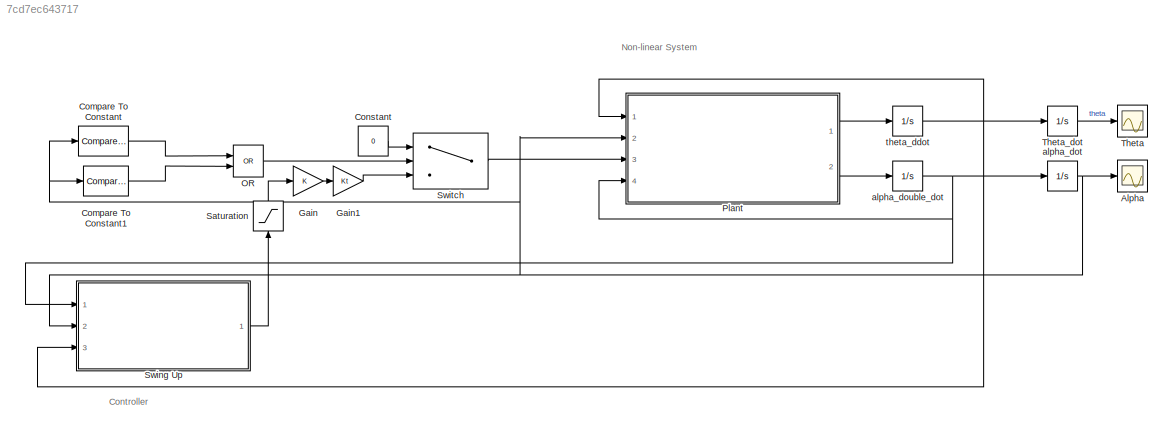
MODEL slx_7cd7ec643717
KIND model
CONFIG AbsTol = auto
CONFIG EnableMultiTasking = off
CONFIG FixedStep = .0001
CONFIG MaxStep = auto
CONFIG MinStep = auto
CONFIG RelTol = 1e-3
CONFIG SampleTimeConstraint = Unconstrained
CONFIG Solver = ode4
CONFIG SolverName = ode4
CONFIG StartTime = 0.0
CONFIG StopTime = 10
BLOCK [Scope] Alpha
  Floating = off
  NumInputPorts = 1
  Ports = [1]
  ScopeSpecificationString = Simulink.scopes.TimeScopeBlockCfg('CurrentConfiguration', extmgr.ConfigurationSet(extmgr.Configuration('Core','General UI',true),extmgr.Configuration('Core','Source UI',true),extmgr.Configuration('Sources','WiredSimulink',true,'DataLoggingVariableName','ScopeData1'),extmgr.Configuration('Visuals','Time Domain',true,'SerializedDisplays',{struct('MinYLimReal','-1.11438','MaxYLimReal','13.46075','YLa...<+1470ch>
BLOCK [Reference] Compare To Constant  REF=simulink/Logic and Bit
Operations/Compare
To Constant
  Ports = [1, 1]
  SourceBlock = simulink/Logic and Bit\nOperations/Compare\nTo Constant
  SourceProductBaseCode = SL
  SourceType = Compare To Constant
BLOCK [Reference] Compare To Constant1  REF=simulink/Logic and Bit
Operations/Compare
To Constant
  Ports = [1, 1]
  SourceBlock = simulink/Logic and Bit\nOperations/Compare\nTo Constant
  SourceProductBaseCode = SL
  SourceType = Compare To Constant
BLOCK [Constant] Constant
  Value = 0
BLOCK [Gain] Gain
BLOCK [Gain] Gain1
  Gain = Kt
BLOCK [Logic] OR
  AllPortsSameDT = off
  IconShape = distinctive
  Operator = OR
  OutDataTypeStr = boolean
  Ports = [2, 1]
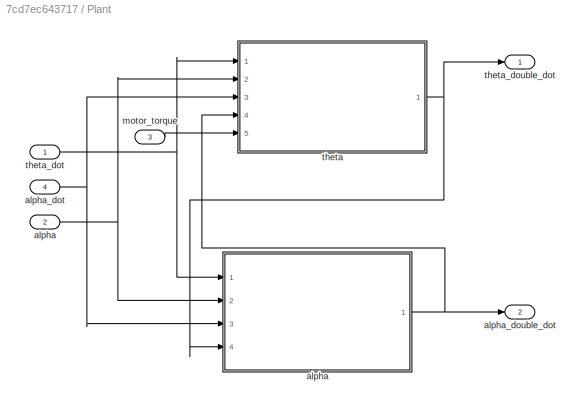
BLOCK [SubSystem] Plant
  Ports = [4, 2]
  RequestExecContextInheritance = off
BLOCK [Inport] Plant/alpha
  Port = 2
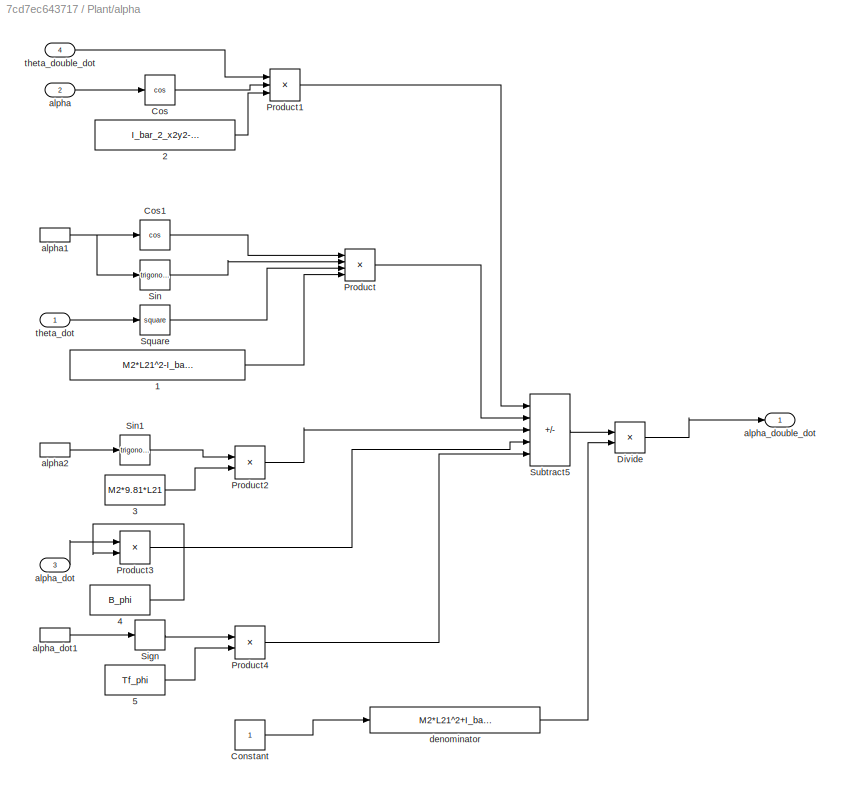
BLOCK [SubSystem] Plant/alpha 
  Ports = [4, 1]
  RequestExecContextInheritance = off
BLOCK [Fcn] Plant/alpha /1
  Expr = M2*L21^2-I_bar_2_y2+I_bar_2_z2
BLOCK [Fcn] Plant/alpha /2
  Expr = I_bar_2_x2y2-M2*L1*L21
BLOCK [Fcn] Plant/alpha /3
  Expr = M2*9.81*L21
BLOCK [Fcn] Plant/alpha /4
  Expr = B_phi
BLOCK [Fcn] Plant/alpha /5
  Expr = Tf_phi
BLOCK [Constant] Plant/alpha /Constant
BLOCK [Trigonometry] Plant/alpha /Cos
  Operator = cos
  Ports = [1, 1]
BLOCK [Trigonometry] Plant/alpha /Cos1
  Operator = cos
  Ports = [1, 1]
BLOCK [Product] Plant/alpha /Divide
  Inputs = */
  Ports = [2, 1]
BLOCK [Product] Plant/alpha /Product
  Inputs = 4
  Ports = [4, 1]
BLOCK [Product] Plant/alpha /Product1
  Inputs = 3
  Ports = [3, 1]
BLOCK [Product] Plant/alpha /Product2
  Ports = [2, 1]
BLOCK [Product] Plant/alpha /Product3
  Ports = [2, 1]
BLOCK [Product] Plant/alpha /Product4
  Ports = [2, 1]
BLOCK [Signum] Plant/alpha /Sign
BLOCK [Trigonometry] Plant/alpha /Sin
  Ports = [1, 1]
BLOCK [Trigonometry] Plant/alpha /Sin1
  Ports = [1, 1]
BLOCK [Math] Plant/alpha /Square
  Operator = square
  Ports = [1, 1]
  SignedPower = on
BLOCK [Sum] Plant/alpha /Subtract5
  IconShape = rectangular
  Inputs = +++--
  Ports = [5, 1]
BLOCK [Inport] Plant/alpha /alpha
  Port = 2
BLOCK [InportShadow] Plant/alpha /alpha1
  Port = 2
BLOCK [InportShadow] Plant/alpha /alpha2
  Port = 2
BLOCK [Inport] Plant/alpha /alpha_dot
  Port = 3
BLOCK [InportShadow] Plant/alpha /alpha_dot1
  Port = 3
BLOCK [Outport] Plant/alpha /alpha_double_dot
BLOCK [Fcn] Plant/alpha /denominator 
  Expr = M2*L21^2+I_bar_2_x2
BLOCK [Inport] Plant/alpha /theta_dot
BLOCK [Inport] Plant/alpha /theta_double_dot
  Port = 4
BLOCK [Inport] Plant/alpha_dot
  Port = 4
BLOCK [Outport] Plant/alpha_double_dot
  Port = 2
BLOCK [Inport] Plant/motor_torque 
  Port = 3
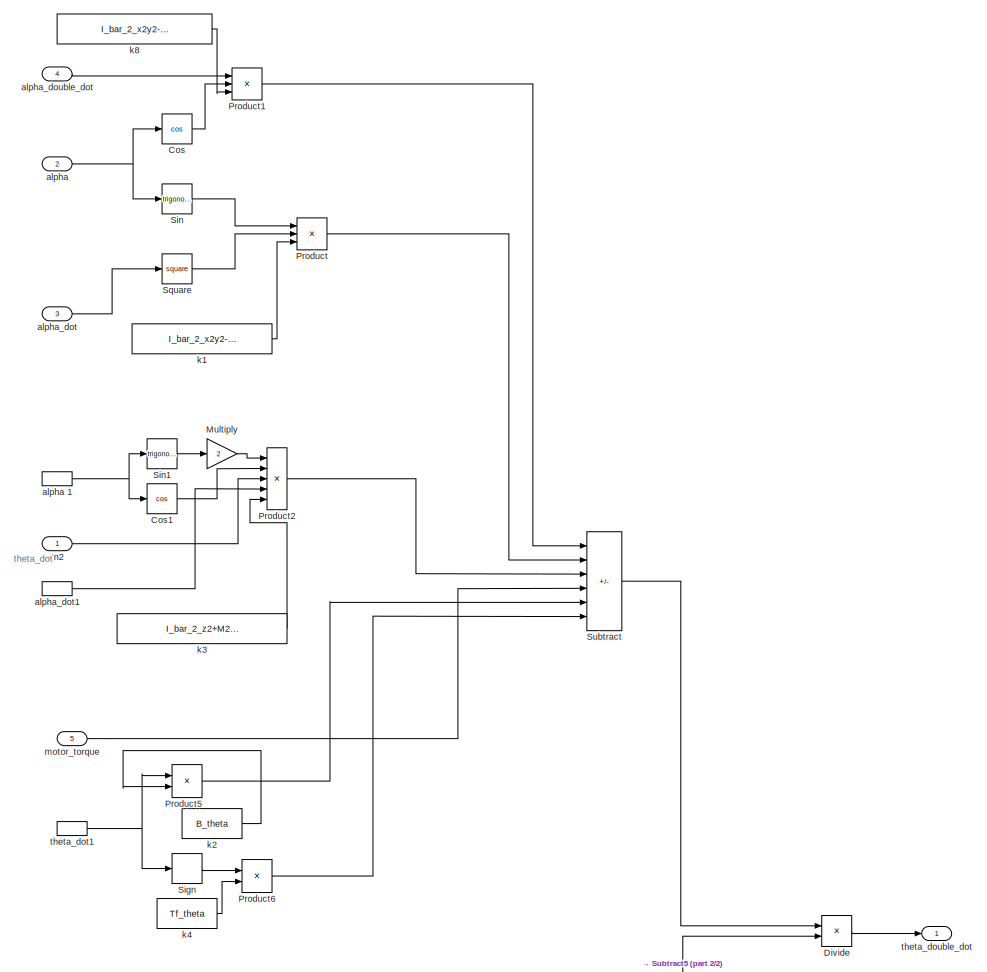
[diagram: Plant/theta  - part 1/2, full width, middle band]
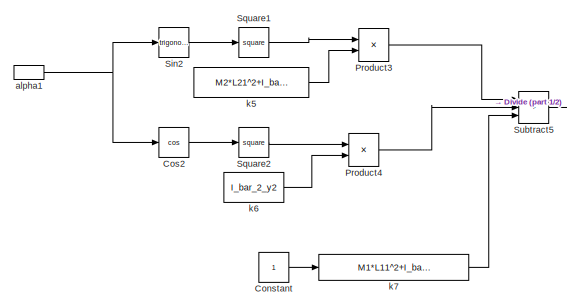
[diagram: Plant/theta  - part 2/2, bottom center region]
BLOCK [SubSystem] Plant/theta 
  Ports = [5, 1]
  RequestExecContextInheritance = off
BLOCK [Constant] Plant/theta /Constant
BLOCK [Trigonometry] Plant/theta /Cos
  Operator = cos
  Ports = [1, 1]
BLOCK [Trigonometry] Plant/theta /Cos1
  Operator = cos
  Ports = [1, 1]
BLOCK [Trigonometry] Plant/theta /Cos2
  Operator = cos
  Ports = [1, 1]
BLOCK [Product] Plant/theta /Divide
  Inputs = */
  Ports = [2, 1]
BLOCK [Inport] Plant/theta /In2
BLOCK [Gain] Plant/theta /Multiply
  Gain = 2
BLOCK [Product] Plant/theta /Product
  Inputs = 3
  Ports = [3, 1]
BLOCK [Product] Plant/theta /Product1
  Inputs = 3
  Ports = [3, 1]
BLOCK [Product] Plant/theta /Product2
  Inputs = 5
  Ports = [5, 1]
BLOCK [Product] Plant/theta /Product3
  Ports = [2, 1]
BLOCK [Product] Plant/theta /Product4
  Ports = [2, 1]
BLOCK [Product] Plant/theta /Product5
  Ports = [2, 1]
BLOCK [Product] Plant/theta /Product6
  Ports = [2, 1]
BLOCK [Signum] Plant/theta /Sign
BLOCK [Trigonometry] Plant/theta /Sin
  Ports = [1, 1]
BLOCK [Trigonometry] Plant/theta /Sin1
  Ports = [1, 1]
BLOCK [Trigonometry] Plant/theta /Sin2
  Ports = [1, 1]
BLOCK [Math] Plant/theta /Square
  Operator = square
  Ports = [1, 1]
  SignedPower = on
BLOCK [Math] Plant/theta /Square1
  Operator = square
  Ports = [1, 1]
  SignedPower = on
BLOCK [Math] Plant/theta /Square2
  Operator = square
  Ports = [1, 1]
  SignedPower = on
BLOCK [Sum] Plant/theta /Subtract
  IconShape = rectangular
  Inputs = +--+--
  Ports = [6, 1]
BLOCK [Sum] Plant/theta /Subtract5
  IconShape = rectangular
  Inputs = +++
  Ports = [3, 1]
BLOCK [Inport] Plant/theta /alpha
  Port = 2
BLOCK [InportShadow] Plant/theta /alpha 1
  Port = 2
BLOCK [InportShadow] Plant/theta /alpha1
  Port = 2
BLOCK [Inport] Plant/theta /alpha_dot
  Port = 3
BLOCK [InportShadow] Plant/theta /alpha_dot1
  Port = 3
BLOCK [Inport] Plant/theta /alpha_double_dot
  Port = 4
BLOCK [Fcn] Plant/theta /k1
  Expr = I_bar_2_x2y2-M2*L1*L21
BLOCK [Fcn] Plant/theta /k2
  Expr = B_theta
BLOCK [Fcn] Plant/theta /k3
  Expr = I_bar_2_z2+M2*L21^2-I_bar_2_y2
BLOCK [Fcn] Plant/theta /k4
  Expr = Tf_theta
BLOCK [Fcn] Plant/theta /k5
  Expr = M2*L21^2+I_bar_2_z2
BLOCK [Fcn] Plant/theta /k6
  Expr = I_bar_2_y2
BLOCK [Fcn] Plant/theta /k7
  Expr = M1*L11^2+I_bar_1_z1+M2*L1^2
BLOCK [Fcn] Plant/theta /k8
  Expr = I_bar_2_x2y2-M2*L1*L21
BLOCK [Inport] Plant/theta /motor_torque 
  Port = 5
BLOCK [InportShadow] Plant/theta /theta_dot1
BLOCK [Outport] Plant/theta /theta_double_dot 
BLOCK [Inport] Plant/theta_dot
BLOCK [Outport] Plant/theta_double_dot 
BLOCK [Saturate] Saturation
  LowerLimit = -3
  NameLocation = right
  UpperLimit = 3
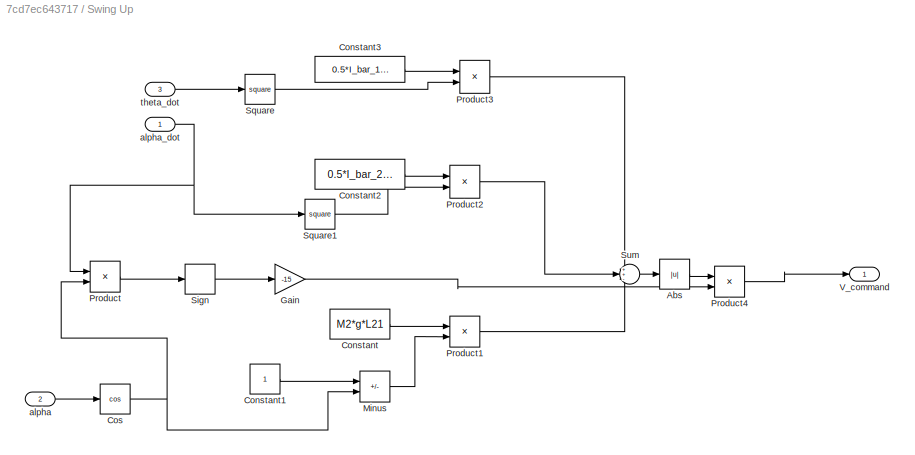
BLOCK [SubSystem] Swing Up 
  Ports = [3, 1]
  RequestExecContextInheritance = off
BLOCK [Abs] Swing Up /Abs
  SaturateOnIntegerOverflow = off
BLOCK [Constant] Swing Up /Constant
  Value = M2*g*L21
BLOCK [Constant] Swing Up /Constant1
BLOCK [Constant] Swing Up /Constant2
  Value = 0.5*I_bar_2_x2
BLOCK [Constant] Swing Up /Constant3
  Value = 0.5*I_bar_1_z1
BLOCK [Trigonometry] Swing Up /Cos
  Operator = cos
  Ports = [1, 1]
BLOCK [Gain] Swing Up /Gain
  Gain = -15
BLOCK [Sum] Swing Up /Minus
  IconShape = rectangular
  Inputs = +-
  Ports = [2, 1]
BLOCK [Product] Swing Up /Product
  Ports = [2, 1]
BLOCK [Product] Swing Up /Product1
  Ports = [2, 1]
BLOCK [Product] Swing Up /Product2
  Ports = [2, 1]
BLOCK [Product] Swing Up /Product3
  Ports = [2, 1]
BLOCK [Product] Swing Up /Product4
  Ports = [2, 1]
BLOCK [Signum] Swing Up /Sign
BLOCK [Math] Swing Up /Square
  Operator = square
  Ports = [1, 1]
  SignedPower = on
BLOCK [Math] Swing Up /Square1
  Operator = square
  Ports = [1, 1]
  SignedPower = on
BLOCK [Sum] Swing Up /Sum
  Inputs = ++-
  Ports = [3, 1]
BLOCK [Outport] Swing Up /V_command
  VectorParamsAs1DForOutWhenUnconnected = off
BLOCK [Inport] Swing Up /alpha
  Port = 2
BLOCK [Inport] Swing Up /alpha_dot
BLOCK [Inport] Swing Up /theta_dot
  Port = 3
BLOCK [Switch] Switch
  Criteria = u2 > Threshold
  InputSameDT = off
  SaturateOnIntegerOverflow = off
BLOCK [Scope] Theta
  Floating = off
  NumInputPorts = 1
  Ports = [1]
  ScopeSpecificationString = Simulink.scopes.TimeScopeBlockCfg('CurrentConfiguration', extmgr.ConfigurationSet(extmgr.Configuration('Core','General UI',true),extmgr.Configuration('Core','Source UI',true),extmgr.Configuration('Sources','WiredSimulink',true),extmgr.Configuration('Visuals','Time Domain',true,'SerializedDisplays',{struct('MinYLimReal','-13.26335','MaxYLimReal','1.47371','YLabelReal','','MinYLimMag','0.00000','Max...<+1383ch>
BLOCK [Integrator] Theta_dot
  Ports = [1, 1]
BLOCK [Integrator] alpha_dot
  InitialCondition = pi+.1
  Ports = [1, 1]
BLOCK [Integrator] alpha_double_dot
  Ports = [1, 1]
BLOCK [Integrator] theta_ddot
  Ports = [1, 1]
ANNOTATION (root): Controller
ANNOTATION (root): Non-linear System
ANNOTATION Plant/theta : theta_dot
LINE Compare To Constant1:1 -> OR:2
LINE Compare To Constant:1 -> OR:1
LINE Constant:1 -> Switch:1
LINE Gain1:1 -> Switch:3
LINE Gain:1 -> Gain1:1
LINE OR:1 -> Switch:2
LINE Plant/alpha /1:1 -> Plant/alpha /Product:4
LINE Plant/alpha /2:1 -> Plant/alpha /Product1:3
LINE Plant/alpha /3:1 -> Plant/alpha /Product2:2
LINE Plant/alpha /4:1 -> Plant/alpha /Product3:2
LINE Plant/alpha /5:1 -> Plant/alpha /Product4:2
LINE Plant/alpha /Constant:1 -> Plant/alpha /denominator :1
LINE Plant/alpha /Cos1:1 -> Plant/alpha /Product:1
LINE Plant/alpha /Cos:1 -> Plant/alpha /Product1:2
LINE Plant/alpha /Divide:1 -> Plant/alpha /alpha_double_dot:1
LINE Plant/alpha /Product1:1 -> Plant/alpha /Subtract5:1
LINE Plant/alpha /Product2:1 -> Plant/alpha /Subtract5:3
LINE Plant/alpha /Product3:1 -> Plant/alpha /Subtract5:4
LINE Plant/alpha /Product4:1 -> Plant/alpha /Subtract5:5
LINE Plant/alpha /Product:1 -> Plant/alpha /Subtract5:2
LINE Plant/alpha /Sign:1 -> Plant/alpha /Product4:1
LINE Plant/alpha /Sin1:1 -> Plant/alpha /Product2:1
LINE Plant/alpha /Sin:1 -> Plant/alpha /Product:2
LINE Plant/alpha /Square:1 -> Plant/alpha /Product:3
LINE Plant/alpha /Subtract5:1 -> Plant/alpha /Divide:1
NET Plant/alpha /alpha1:1 -> Plant/alpha /Cos1:1, Plant/alpha /Sin:1
LINE Plant/alpha /alpha2:1 -> Plant/alpha /Sin1:1
LINE Plant/alpha /alpha:1 -> Plant/alpha /Cos:1
LINE Plant/alpha /alpha_dot1:1 -> Plant/alpha /Sign:1
LINE Plant/alpha /alpha_dot:1 -> Plant/alpha /Product3:1
LINE Plant/alpha /denominator :1 -> Plant/alpha /Divide:2
LINE Plant/alpha /theta_dot:1 -> Plant/alpha /Square:1
LINE Plant/alpha /theta_double_dot:1 -> Plant/alpha /Product1:1
NET Plant/alpha :1 -> Plant/alpha_double_dot:1, Plant/theta :4
NET Plant/alpha:1 -> Plant/alpha :2, Plant/theta :2
NET Plant/alpha_dot:1 -> Plant/alpha :3, Plant/theta :3
LINE Plant/motor_torque :1 -> Plant/theta :5
LINE Plant/theta /Constant:1 -> Plant/theta /k7:1
LINE Plant/theta /Cos1:1 -> Plant/theta /Product2:2
LINE Plant/theta /Cos2:1 -> Plant/theta /Square2:1
LINE Plant/theta /Cos:1 -> Plant/theta /Product1:2
LINE Plant/theta /Divide:1 -> Plant/theta /theta_double_dot :1
LINE Plant/theta /In2:1 -> Plant/theta /Product2:3
LINE Plant/theta /Multiply:1 -> Plant/theta /Product2:1
LINE Plant/theta /Product1:1 -> Plant/theta /Subtract:1
LINE Plant/theta /Product2:1 -> Plant/theta /Subtract:3
LINE Plant/theta /Product3:1 -> Plant/theta /Subtract5:1
LINE Plant/theta /Product4:1 -> Plant/theta /Subtract5:2
LINE Plant/theta /Product5:1 -> Plant/theta /Subtract:5
LINE Plant/theta /Product6:1 -> Plant/theta /Subtract:6
LINE Plant/theta /Product:1 -> Plant/theta /Subtract:2
LINE Plant/theta /Sign:1 -> Plant/theta /Product6:1
LINE Plant/theta /Sin1:1 -> Plant/theta /Multiply:1
LINE Plant/theta /Sin2:1 -> Plant/theta /Square1:1
LINE Plant/theta /Sin:1 -> Plant/theta /Product:1
LINE Plant/theta /Square1:1 -> Plant/theta /Product3:1
LINE Plant/theta /Square2:1 -> Plant/theta /Product4:1
LINE Plant/theta /Square:1 -> Plant/theta /Product:2
LINE Plant/theta /Subtract5:1 -> Plant/theta /Divide:2
LINE Plant/theta /Subtract:1 -> Plant/theta /Divide:1
NET Plant/theta /alpha 1:1 -> Plant/theta /Cos1:1, Plant/theta /Sin1:1
NET Plant/theta /alpha1:1 -> Plant/theta /Cos2:1, Plant/theta /Sin2:1
NET Plant/theta /alpha:1 -> Plant/theta /Cos:1, Plant/theta /Sin:1
LINE Plant/theta /alpha_dot1:1 -> Plant/theta /Product2:4
LINE Plant/theta /alpha_dot:1 -> Plant/theta /Square:1
LINE Plant/theta /alpha_double_dot:1 -> Plant/theta /Product1:1
LINE Plant/theta /k1:1 -> Plant/theta /Product:3
LINE Plant/theta /k2:1 -> Plant/theta /Product5:2
LINE Plant/theta /k3:1 -> Plant/theta /Product2:5
LINE Plant/theta /k4:1 -> Plant/theta /Product6:2
LINE Plant/theta /k5:1 -> Plant/theta /Product3:2
LINE Plant/theta /k6:1 -> Plant/theta /Product4:2
LINE Plant/theta /k7:1 -> Plant/theta /Subtract5:3
LINE Plant/theta /k8:1 -> Plant/theta /Product1:3
LINE Plant/theta /motor_torque :1 -> Plant/theta /Subtract:4
NET Plant/theta /theta_dot1:1 -> Plant/theta /Product5:1, Plant/theta /Sign:1
NET Plant/theta :1 -> Plant/alpha :4, Plant/theta_double_dot :1
NET Plant/theta_dot:1 -> Plant/alpha :1, Plant/theta :1
LINE Plant:1 -> theta_ddot:1
LINE Plant:2 -> alpha_double_dot:1
LINE Saturation:1 -> Gain:1
LINE Swing Up /Abs:1 -> Swing Up /Product4:1
LINE Swing Up /Constant1:1 -> Swing Up /Minus:1
LINE Swing Up /Constant2:1 -> Swing Up /Product2:1
LINE Swing Up /Constant3:1 -> Swing Up /Product3:1
LINE Swing Up /Constant:1 -> Swing Up /Product1:1
NET Swing Up /Cos:1 -> Swing Up /Minus:2, Swing Up /Product:2
LINE Swing Up /Gain:1 -> Swing Up /Product4:2
LINE Swing Up /Minus:1 -> Swing Up /Product1:2
LINE Swing Up /Product1:1 -> Swing Up /Sum:3
LINE Swing Up /Product2:1 -> Swing Up /Sum:2
LINE Swing Up /Product3:1 -> Swing Up /Sum:1
LINE Swing Up /Product4:1 -> Swing Up /V_command:1
LINE Swing Up /Product:1 -> Swing Up /Sign:1
LINE Swing Up /Sign:1 -> Swing Up /Gain:1
LINE Swing Up /Square1:1 -> Swing Up /Product2:2
LINE Swing Up /Square:1 -> Swing Up /Product3:2
LINE Swing Up /Sum:1 -> Swing Up /Abs:1
LINE Swing Up /alpha:1 -> Swing Up /Cos:1
NET Swing Up /alpha_dot:1 -> Swing Up /Product:1, Swing Up /Square1:1
LINE Swing Up /theta_dot:1 -> Swing Up /Square:1
LINE Swing Up :1 -> Saturation:1
LINE Switch:1 -> Plant:3
LINE Theta_dot:1 -> Theta:1
NET alpha_dot:1 -> Alpha:1, Compare To Constant1:1, Compare To Constant:1, Plant:2, Swing Up :2
NET alpha_double_dot:1 -> Plant:4, Swing Up :1, alpha_dot:1
NET theta_ddot:1 -> Plant:1, Swing Up :3, Theta_dot:1
note: NET lines group one-source signal fan-out (src -> all destinations, sorted); 1:1 wires keep LINE
